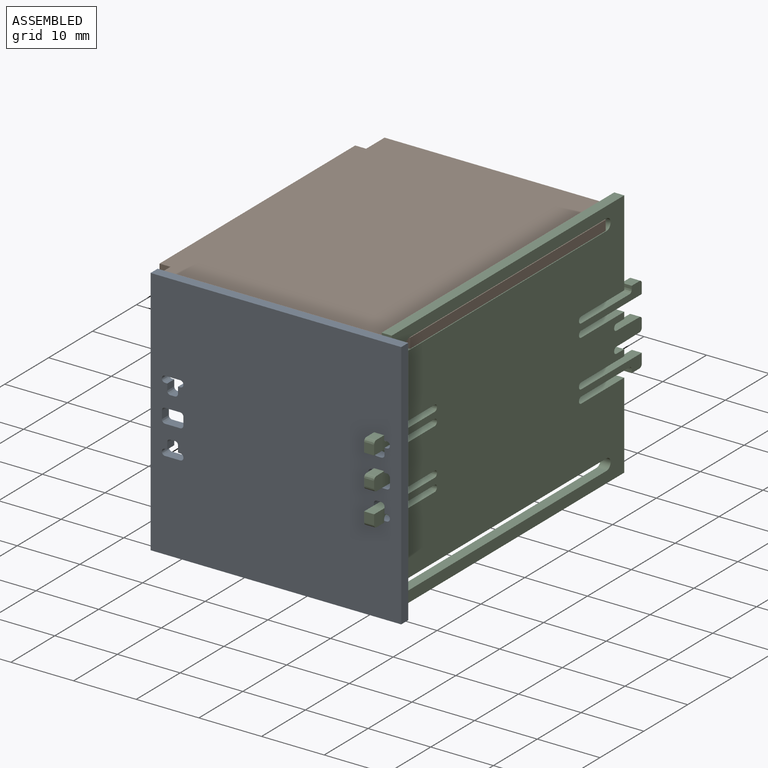
[diagram: assembled view]
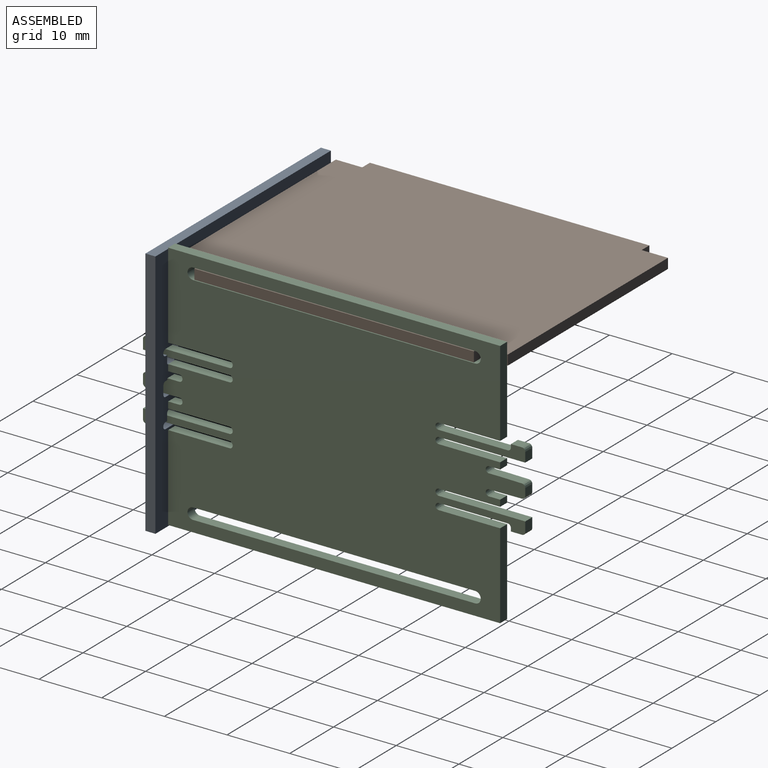
[diagram: assembled view, second angle]
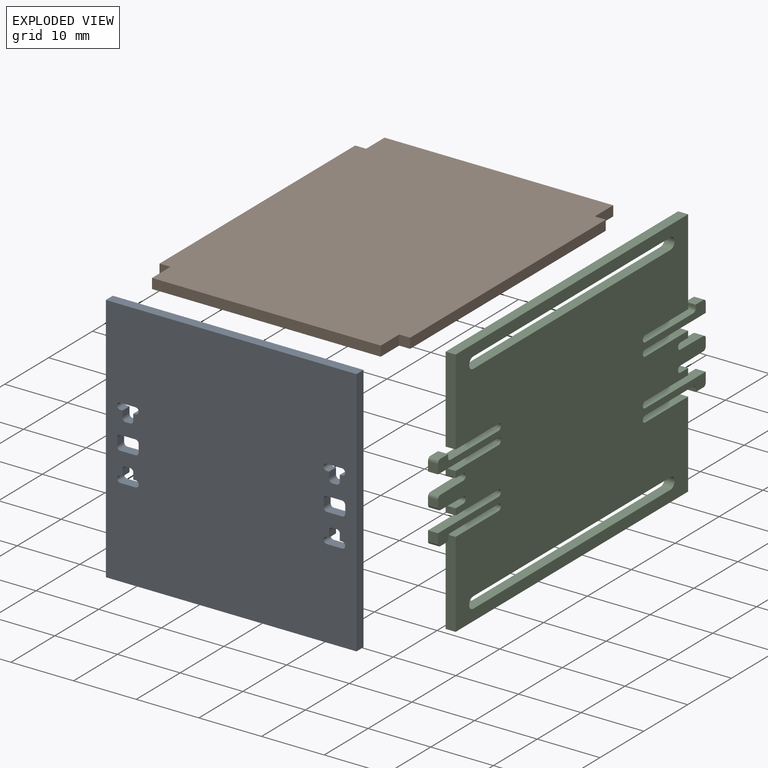
[diagram: exploded view]
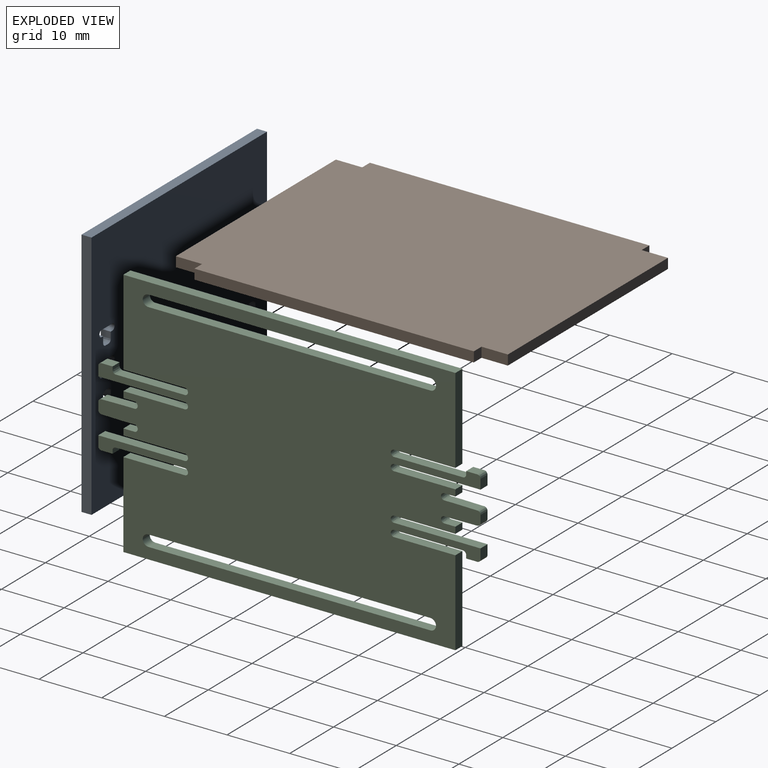
[diagram: exploded view, second angle]
ASSEMBLY  parts=3 mates=2
PART A: 62 faces, bbox 40x1.6x40 mm
  f0: plane 40x1.6mm, normal (0,0,-1), area 64mm2, adj f1,f59,f60,f61
  f1: plane 40x1.6mm, normal (1,0,0), area 64mm2, adj f0,f2,f60,f61
  f2: plane 40x1.6mm, normal (0,0,1), area 64mm2, adj f1,f59,f60,f61
  f3: extruded ~1.6x0.52mm, area 1.3mm2, adj f4,f53,f60,f61
  f4: plane 2.41x1.6mm, normal (0,0,1), area 3.9mm2, adj f3,f5,f60,f61
  f5: extruded ~1.6x0.52mm, area 1.3mm2, adj f4,f6,f60,f61
  f6: plane 1.6x1.26mm, normal (1,0,0), area 2mm2, adj f5,f7,f60,f61
  f7: extruded ~1.6x0.52mm, area 1.3mm2, adj f6,f8,f60,f61
  f8: plane 2.41x1.6mm, normal (0,0,-1), area 3.9mm2, adj f7,f9,f60,f61
  f9: extruded ~1.6x0.52mm, area 1.3mm2, adj f8,f53,f60,f61
  f10: extruded ~1.6x1.03mm, area 2.6mm2, adj f11,f54,f60,f61
  f11: plane 1.6x0.34mm, normal (0,0,-1), area 0.6mm2, adj f10,f12,f60,f61
  f12: plane 1.6x1.03mm, normal (1,0,0), area 1.7mm2, adj f11,f13,f60,f61
  f13: extruded ~1.6x0.52mm, area 1.3mm2, adj f12,f14,f60,f61
  f14: plane 1.6x0.69mm, normal (0,0,-1), area 1.1mm2, adj f13,f15,f60,f61
  f15: extruded ~1.6x0.52mm, area 1.3mm2, adj f14,f16,f60,f61
  f16: plane 1.6x1.03mm, normal (-1,0,0), area 1.7mm2, adj f15,f17,f60,f61
  f17: plane 1.6x0.34mm, normal (0,0,-1), area 0.6mm2, adj f16,f18,f60,f61
  f18: extruded ~1.6x1.03mm, area 2.6mm2, adj f17,f54,f60,f61
  f19: extruded ~1.6x0.52mm, area 1.3mm2, adj f20,f55,f60,f61
  f20: plane 1.6x1.03mm, normal (1,0,0), area 1.7mm2, adj f19,f21,f60,f61
  f21: plane 1.6x0.34mm, normal (0,0,1), area 0.6mm2, adj f20,f22,f60,f61
  f22: extruded ~1.6x1.03mm, area 2.6mm2, adj f21,f23,f60,f61
  f23: plane 2.41x1.6mm, normal (0,0,-1), area 3.9mm2, adj f22,f24,f60,f61
  f24: extruded ~1.6x1.03mm, area 2.6mm2, adj f23,f25,f60,f61
  f25: plane 1.6x0.34mm, normal (0,0,1), area 0.6mm2, adj f24,f26,f60,f61
  f26: plane 1.6x1.03mm, normal (-1,0,0), area 1.7mm2, adj f25,f27,f60,f61
  f27: extruded ~1.6x0.52mm, area 1.3mm2, adj f26,f55,f60,f61
  f28: extruded ~1.6x0.52mm, area 1.3mm2, adj f29,f56,f60,f61
  f29: plane 1.6x0.69mm, normal (0,0,-1), area 1.1mm2, adj f28,f30,f60,f61
  f30: extruded ~1.6x0.52mm, area 1.3mm2, adj f29,f31,f60,f61
  f31: plane 1.6x1.03mm, normal (-1,0,0), area 1.7mm2, adj f30,f32,f60,f61
  f32: plane 1.6x0.34mm, normal (0,0,-1), area 0.6mm2, adj f31,f33,f60,f61
  f33: extruded ~1.6x1.03mm, area 2.6mm2, adj f32,f34,f60,f61
  f34: plane 2.41x1.6mm, normal (0,0,1), area 3.9mm2, adj f33,f35,f60,f61
  f35: extruded ~1.6x1.03mm, area 2.6mm2, adj f34,f36,f60,f61
  f36: plane 1.6x0.34mm, normal (0,0,-1), area 0.6mm2, adj f35,f56,f60,f61
  f37: extruded ~1.6x0.52mm, area 1.3mm2, adj f38,f57,f60,f61
  f38: plane 1.6x1.26mm, normal (-1,0,0), area 2mm2, adj f37,f39,f60,f61
  f39: extruded ~1.6x0.52mm, area 1.3mm2, adj f38,f40,f60,f61
  f40: plane 2.41x1.6mm, normal (0,0,1), area 3.9mm2, adj f39,f41,f60,f61
  f41: extruded ~1.6x0.52mm, area 1.3mm2, adj f40,f42,f60,f61
  f42: plane 1.6x1.26mm, normal (1,0,0), area 2mm2, adj f41,f43,f60,f61
  f43: extruded ~1.6x0.52mm, area 1.3mm2, adj f42,f57,f60,f61
  f44: plane 1.6x0.69mm, normal (0,0,1), area 1.1mm2, adj f45,f58,f60,f61
  f45: extruded ~1.6x0.52mm, area 1.3mm2, adj f44,f46,f60,f61
  f46: plane 1.6x1.03mm, normal (1,0,0), area 1.7mm2, adj f45,f47,f60,f61
  f47: plane 1.6x0.34mm, normal (0,0,1), area 0.6mm2, adj f46,f48,f60,f61
  f48: extruded ~1.6x1.03mm, area 2.6mm2, adj f47,f49,f60,f61
  f49: plane 2.41x1.6mm, normal (0,0,-1), area 3.9mm2, adj f48,f50,f60,f61
  f50: extruded ~1.6x1.03mm, area 2.6mm2, adj f49,f51,f60,f61
  f51: plane 1.6x0.34mm, normal (0,0,1), area 0.6mm2, adj f50,f52,f60,f61
  f52: plane 1.6x1.03mm, normal (-1,0,0), area 1.7mm2, adj f51,f58,f60,f61
  f53: plane 1.6x1.26mm, normal (-1,0,0), area 2mm2, adj f3,f9,f60,f61
  f54: plane 2.41x1.6mm, normal (0,0,1), area 3.9mm2, adj f10,f18,f60,f61
  f55: plane 1.6x0.69mm, normal (0,0,1), area 1.1mm2, adj f19,f27,f60,f61
  f56: plane 1.6x1.03mm, normal (1,0,0), area 1.7mm2, adj f28,f36,f60,f61
  f57: plane 2.41x1.6mm, normal (0,0,-1), area 3.9mm2, adj f37,f43,f60,f61
  f58: extruded ~1.6x0.52mm, area 1.3mm2, adj f44,f52,f60,f61
  f59: plane 40x1.6mm, normal (-1,0,0), area 64mm2, adj f0,f2,f60,f61
  f60: plane 40x40mm, normal (0,-1,0), area 1561.3mm2, adj f0,f1,f2,f3,f4,f5,f6,f7
  f61: plane 40x40mm, normal (0,1,0), area 1561.3mm2, adj f0,f1,f2,f3,f4,f5,f6,f7
PART B: 14 faces, bbox 53x1.6x40 mm
  f0: plane 1.75x1.6mm, normal (1,0,0), area 2.8mm2, adj f1,f11,f12,f13
  f1: plane 44.6x1.6mm, normal (0,0,1), area 71.4mm2, adj f0,f2,f12,f13
  f2: plane 1.75x1.6mm, normal (-1,0,0), area 2.8mm2, adj f1,f3,f12,f13
  f3: plane 4.2x1.6mm, normal (0,0,1), area 6.7mm2, adj f2,f4,f12,f13
  f4: plane 36.5x1.6mm, normal (-1,0,0), area 58.4mm2, adj f3,f5,f12,f13
  f5: plane 4.2x1.6mm, normal (0,0,-1), area 6.7mm2, adj f4,f6,f12,f13
  f6: plane 1.75x1.6mm, normal (-1,0,0), area 2.8mm2, adj f5,f7,f12,f13
  f7: plane 44.6x1.6mm, normal (0,0,-1), area 71.4mm2, adj f6,f8,f12,f13
  f8: plane 1.75x1.6mm, normal (1,0,0), area 2.8mm2, adj f7,f9,f12,f13
  f9: plane 4.2x1.6mm, normal (0,0,-1), area 6.7mm2, adj f8,f10,f12,f13
  f10: plane 36.5x1.6mm, normal (1,0,0), area 58.4mm2, adj f9,f11,f12,f13
  f11: plane 4.2x1.6mm, normal (0,0,1), area 6.7mm2, adj f0,f10,f12,f13
  f12: plane 53x40mm, normal (0,-1,0), area 2090.6mm2, adj f0,f1,f2,f3,f4,f5,f6,f7
  f13: plane 53x40mm, normal (0,1,0), area 2090.6mm2, adj f0,f1,f2,f3,f4,f5,f6,f7
PART C: 86 faces, bbox 61x1.6x40 mm
  f0: cylinder r=0.9mm len=1.8mm, axis (0,1,0), area 4.5mm2, adj f1,f83,f84,f85
  f1: plane 45x1.6mm, normal (0,0,1), area 72mm2, adj f0,f2,f84,f85
  f2: cylinder r=0.9mm len=1.8mm, axis (0,1,0), area 4.5mm2, adj f1,f83,f84,f85
  f3: extruded ~1.6x0.52mm, area 1.3mm2, adj f4,f81,f84,f85
  f4: plane 11x1.6mm, normal (0,0,1), area 17.6mm2, adj f3,f5,f84,f85
  f5: extruded ~1.6x1.03mm, area 2.6mm2, adj f4,f6,f84,f85
  f6: plane 9.8x1.6mm, normal (0,0,-1), area 15.7mm2, adj f5,f7,f84,f85
  f7: plane 13.7x1.6mm, normal (1,0,0), area 21.9mm2, adj f6,f8,f84,f85
  f8: plane 53x1.6mm, normal (0,0,1), area 84.8mm2, adj f7,f9,f84,f85
  f9: plane 13.7x1.6mm, normal (-1,0,0), area 21.9mm2, adj f8,f10,f84,f85
  f10: plane 9.8x1.6mm, normal (0,0,-1), area 15.7mm2, adj f9,f11,f84,f85
  f11: extruded ~1.6x1.03mm, area 2.6mm2, adj f10,f12,f84,f85
  f12: plane 11x1.6mm, normal (0,0,1), area 17.6mm2, adj f11,f13,f84,f85
  f13: extruded ~1.6x0.52mm, area 1.3mm2, adj f12,f14,f84,f85
  f14: plane 1.6x0.52mm, normal (1,0,0), area 0.8mm2, adj f13,f15,f84,f85
  f15: plane 1.78x1.6mm, normal (0,0,1), area 2.8mm2, adj f14,f16,f84,f85
  f16: extruded ~1.6x0.52mm, area 1.3mm2, adj f15,f17,f84,f85
  f17: plane 1.6x1.55mm, normal (-1,0,0), area 2.5mm2, adj f16,f18,f84,f85
  f18: plane 13.81x1.6mm, normal (0,0,-1), area 22.1mm2, adj f17,f19,f84,f85
  f19: extruded ~1.6x1.03mm, area 2.6mm2, adj f18,f20,f84,f85
  f20: plane 9.8x1.6mm, normal (0,0,1), area 15.7mm2, adj f19,f21,f84,f85
  f21: plane 1.6x1.03mm, normal (-1,0,0), area 1.7mm2, adj f20,f22,f84,f85
  f22: plane 1.78x1.6mm, normal (0,0,-1), area 2.8mm2, adj f21,f23,f84,f85
  f23: extruded ~1.6x1.03mm, area 2.6mm2, adj f22,f24,f84,f85
  f24: plane 1.78x1.6mm, normal (0,0,1), area 2.8mm2, adj f23,f25,f84,f85
  f25: plane 3.5x1.6mm, normal (-0.01,0,1), area 5.6mm2, adj f24,f26,f84,f85
  f26: extruded ~1.6x0.52mm, area 1.3mm2, adj f25,f27,f84,f85
  f27: plane 1.6x1.16mm, normal (-1,0,0), area 1.9mm2, adj f26,f28,f84,f85
  f28: extruded ~1.6x0.52mm, area 1.3mm2, adj f27,f29,f84,f85
  f29: plane 3.5x1.6mm, normal (-0.01,0,-1), area 5.6mm2, adj f28,f30,f84,f85
  f30: plane 1.78x1.6mm, normal (0,0,-1), area 2.8mm2, adj f29,f31,f84,f85
  f31: extruded ~1.6x1.03mm, area 2.6mm2, adj f30,f32,f84,f85
  f32: plane 1.78x1.6mm, normal (0,0,1), area 2.8mm2, adj f31,f33,f84,f85
  f33: plane 1.6x1.03mm, normal (-1,0,0), area 1.7mm2, adj f32,f34,f84,f85
  f34: plane 9.8x1.6mm, normal (0,0,-1), area 15.7mm2, adj f33,f35,f84,f85
  f35: extruded ~1.6x1.03mm, area 2.6mm2, adj f34,f36,f84,f85
  f36: plane 13.81x1.6mm, normal (0,0,1), area 22.1mm2, adj f35,f37,f84,f85
  f37: plane 1.6x1.55mm, normal (-1,0,0), area 2.5mm2, adj f36,f38,f84,f85
  f38: extruded ~1.6x0.52mm, area 1.3mm2, adj f37,f39,f84,f85
  f39: plane 1.78x1.6mm, normal (0,0,-1), area 2.8mm2, adj f38,f40,f84,f85
  f40: plane 1.6x0.52mm, normal (1,0,0), area 0.8mm2, adj f39,f41,f84,f85
  f41: extruded ~1.6x0.52mm, area 1.3mm2, adj f40,f42,f84,f85
  f42: plane 11x1.6mm, normal (0,0,-1), area 17.6mm2, adj f41,f43,f84,f85
  f43: extruded ~1.6x1.03mm, area 2.6mm2, adj f42,f44,f84,f85
  f44: plane 9.8x1.6mm, normal (0,0,1), area 15.7mm2, adj f43,f45,f84,f85
  f45: plane 13.7x1.6mm, normal (-1,0,0), area 21.9mm2, adj f44,f46,f84,f85
  f46: plane 53x1.6mm, normal (0,0,-1), area 84.8mm2, adj f45,f47,f84,f85
  f47: plane 13.7x1.6mm, normal (1,0,0), area 21.9mm2, adj f46,f48,f84,f85
  f48: plane 9.8x1.6mm, normal (0,0,1), area 15.7mm2, adj f47,f49,f84,f85
  f49: extruded ~1.6x1.03mm, area 2.6mm2, adj f48,f50,f84,f85
  f50: plane 11x1.6mm, normal (0,0,-1), area 17.6mm2, adj f49,f51,f84,f85
  f51: extruded ~1.6x0.52mm, area 1.3mm2, adj f50,f52,f84,f85
  f52: plane 1.6x0.52mm, normal (-1,0,0), area 0.8mm2, adj f51,f53,f84,f85
  f53: plane 1.78x1.6mm, normal (0,0,-1), area 2.8mm2, adj f52,f54,f84,f85
  f54: extruded ~1.6x0.52mm, area 1.3mm2, adj f53,f55,f84,f85
  f55: plane 1.6x1.55mm, normal (1,0,0), area 2.5mm2, adj f54,f56,f84,f85
  f56: plane 13.81x1.6mm, normal (0,0,1), area 22.1mm2, adj f55,f57,f84,f85
  f57: extruded ~1.6x1.03mm, area 2.6mm2, adj f56,f58,f84,f85
  f58: plane 9.8x1.6mm, normal (0,0,-1), area 15.7mm2, adj f57,f59,f84,f85
  f59: plane 1.6x1.03mm, normal (1,0,0), area 1.7mm2, adj f58,f60,f84,f85
  f60: plane 1.78x1.6mm, normal (0,0,1), area 2.8mm2, adj f59,f61,f84,f85
  f61: extruded ~1.6x1.03mm, area 2.6mm2, adj f60,f62,f84,f85
  f62: plane 1.78x1.6mm, normal (0,0,-1), area 2.8mm2, adj f61,f63,f84,f85
  f63: plane 3.5x1.6mm, normal (0.01,0,-1), area 5.6mm2, adj f62,f64,f84,f85
  f64: extruded ~1.6x0.52mm, area 1.3mm2, adj f63,f65,f84,f85
  f65: plane 1.6x1.16mm, normal (1,0,0), area 1.9mm2, adj f64,f66,f84,f85
  f66: extruded ~1.6x0.52mm, area 1.3mm2, adj f65,f67,f84,f85
  f67: plane 3.5x1.6mm, normal (0.01,0,1), area 5.6mm2, adj f66,f68,f84,f85
  f68: plane 1.78x1.6mm, normal (0,0,1), area 2.8mm2, adj f67,f69,f84,f85
  f69: extruded ~1.6x1.03mm, area 2.6mm2, adj f68,f70,f84,f85
  f70: plane 1.78x1.6mm, normal (0,0,-1), area 2.8mm2, adj f69,f71,f84,f85
  f71: plane 1.6x1.03mm, normal (1,0,0), area 1.7mm2, adj f70,f72,f84,f85
  f72: plane 9.8x1.6mm, normal (0,0,1), area 15.7mm2, adj f71,f73,f84,f85
  f73: extruded ~1.6x1.03mm, area 2.6mm2, adj f72,f74,f84,f85
  f74: plane 13.81x1.6mm, normal (0,0,-1), area 22.1mm2, adj f73,f75,f84,f85
  f75: plane 1.6x1.55mm, normal (1,0,0), area 2.5mm2, adj f74,f76,f84,f85
  f76: extruded ~1.6x0.52mm, area 1.3mm2, adj f75,f77,f84,f85
  f77: plane 1.78x1.6mm, normal (0,0,1), area 2.8mm2, adj f76,f81,f84,f85
  f78: cylinder r=0.9mm len=1.8mm, axis (0,1,0), area 4.5mm2, adj f79,f82,f84,f85
  f79: plane 45x1.6mm, normal (0,0,-1), area 72mm2, adj f78,f80,f84,f85
  f80: cylinder r=0.9mm len=1.8mm, axis (0,1,0), area 4.5mm2, adj f79,f82,f84,f85
  f81: plane 1.6x0.52mm, normal (-1,0,0), area 0.8mm2, adj f3,f77,f84,f85
  f82: plane 45x1.6mm, normal (0,0,1), area 72mm2, adj f78,f80,f84,f85
  f83: plane 45x1.6mm, normal (0,0,-1), area 72mm2, adj f0,f2,f84,f85
  f84: plane 61.01x40mm, normal (0,-1,0), area 1903mm2, adj f0,f1,f2,f3,f4,f5,f6,f7
  f85: plane 61.01x40mm, normal (0,1,0), area 1903mm2, adj f0,f1,f2,f3,f4,f5,f6,f7
PLACE A t=(-53.35,18.22,24.15)mm
PLACE B rot(axis=(-0.58,-0.58,0.58),120deg) t=(-56.07,44.84,40.88)mm
PLACE C rot(axis=(0,0,-1),90deg) t=(-36.07,36.07,24.38)mm
MATE fastened B.f7 <-> C.f85  axis (1,0,0) through (-36.07,44.84,41.68)mm
MATE fastened C.f52 <-> A.f60  axis (0,1,0) through (-36.87,16.62,18.34)mm
